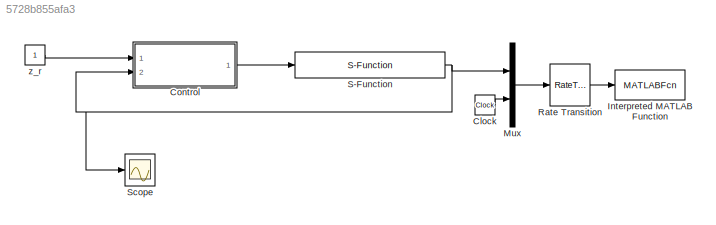
MODEL slx_5728b855afa3
KIND model
CONFIG AbsTol = auto
CONFIG EnableMultiTasking = off
CONFIG FixedStep = auto
CONFIG InitFcn = mass_spring_damper_param
CONFIG MaxStep = 1
CONFIG MinStep = auto
CONFIG RelTol = 1e-3
CONFIG SampleTimeConstraint = Unconstrained
CONFIG Solver = ode45
CONFIG SolverName = ode45
CONFIG StartTime = 0.0
CONFIG StopTime = 50
BLOCK [Clock] Clock
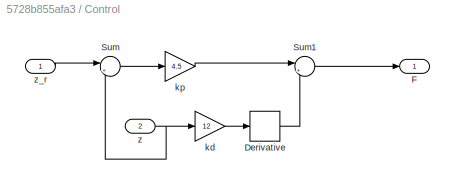
BLOCK [SubSystem] Control
  Ports = [2, 1]
  RequestExecContextInheritance = off
BLOCK [Derivative] Control/Derivative
BLOCK [Outport] Control/F
  IconDisplay = Port number
BLOCK [Sum] Control/Sum
  IconShape = round
  InputSameDT = off
  Inputs = |+-
  OutDataTypeStr = Inherit: Inherit via internal rule
  Ports = [2, 1]
  SaturateOnIntegerOverflow = off
BLOCK [Sum] Control/Sum1
  IconShape = round
  InputSameDT = off
  Inputs = |+-
  OutDataTypeStr = Inherit: Inherit via internal rule
  Ports = [2, 1]
  SaturateOnIntegerOverflow = off
BLOCK [Gain] Control/kd
  Gain = 12
  OutDataTypeStr = Inherit: Inherit via internal rule
  ParamDataTypeStr = Inherit: Inherit via internal rule
  SaturateOnIntegerOverflow = off
BLOCK [Gain] Control/kp
  Gain = 4.5
  OutDataTypeStr = Inherit: Inherit via internal rule
  ParamDataTypeStr = Inherit: Inherit via internal rule
  SaturateOnIntegerOverflow = off
BLOCK [Inport] Control/z
  IconDisplay = Port number
  Port = 2
BLOCK [Inport] Control/z_r
  IconDisplay = Port number
BLOCK [MATLABFcn] Interpreted MATLAB Function
  MATLABFcn = mass_spring_damper_animation(u)
  OutputDimensions = 0
  Ports = [1]
BLOCK [Mux] Mux
  DisplayOption = bar
  Inputs = 2
  Ports = [2, 1]
BLOCK [RateTransition] Rate Transition
  OutPortSampleTime = P.t_plot
BLOCK [S-Function] S-Function
  EnableBusSupport = off
  FunctionName = mass_spring_damper_dynamics
  Parameters = P
  Ports = [1, 1]
  SFcnIsStateOwnerBlock = off
  SFunctionDeploymentMode = off
BLOCK [Scope] Scope
  Floating = off
  NumInputPorts = 1
  Ports = [1]
  ScopeSpecificationString = Simulink.scopes.TimeScopeBlockCfg('CurrentConfiguration', extmgr.ConfigurationSet(extmgr.Configuration('Core','General UI',true),extmgr.Configuration('Core','Source UI',true),extmgr.Configuration('Sources','WiredSimulink',true),extmgr.Configuration('Visuals','Time Domain',true,'SerializedDisplays',{struct('MinYLimReal','-0.075','MaxYLimReal','0.675','YLabelReal','','MinYLimMag','0.00000','MaxYLimM...<+1394ch>
BLOCK [Constant] z_r
LINE Clock:1 -> Mux:2
LINE Control/Derivative:1 -> Control/Sum1:2
LINE Control/Sum1:1 -> Control/F:1
LINE Control/Sum:1 -> Control/kp:1
LINE Control/kd:1 -> Control/Derivative:1
LINE Control/kp:1 -> Control/Sum1:1
NET Control/z:1 -> Control/Sum:2, Control/kd:1
LINE Control/z_r:1 -> Control/Sum:1
LINE Control:1 -> S-Function:1
LINE Mux:1 -> Rate Transition:1
LINE Rate Transition:1 -> Interpreted MATLAB Function:1
NET S-Function:1 -> Control:2, Mux:1, Scope:1
LINE z_r:1 -> Control:1
note: NET lines group one-source signal fan-out (src -> all destinations, sorted); 1:1 wires keep LINE
